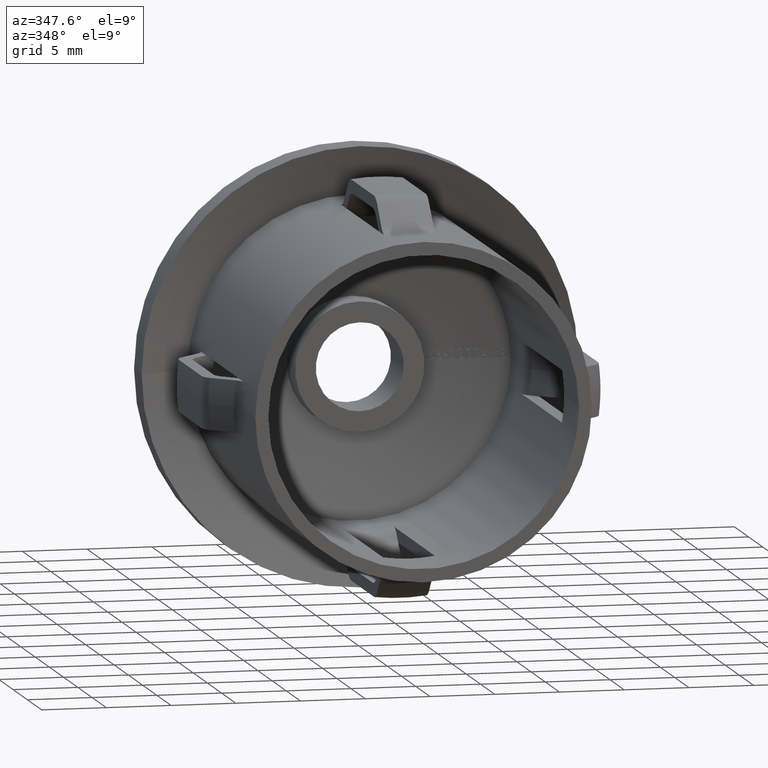
[diagram: clean part render]
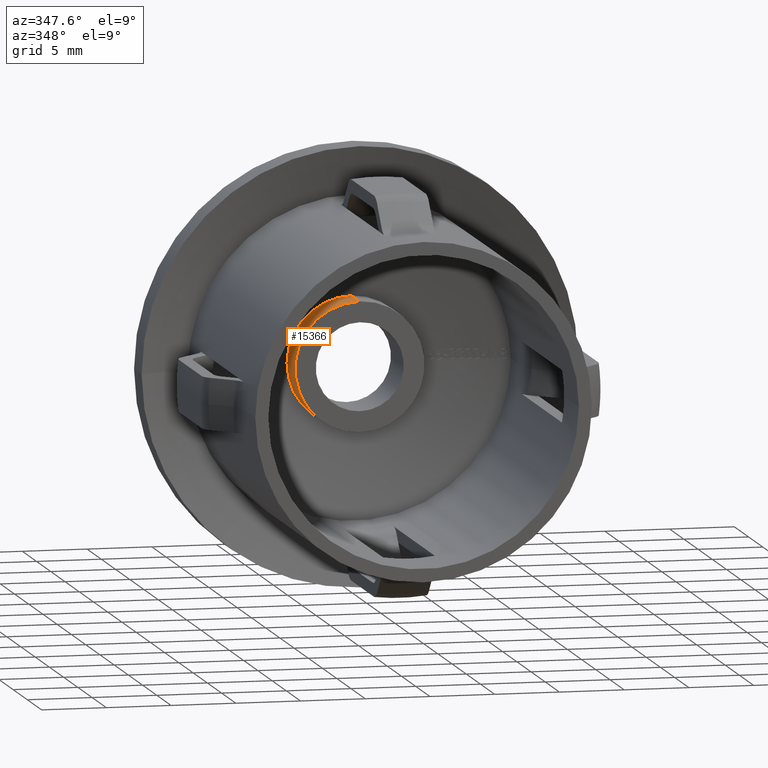
[diagram: same view with one face highlighted and labeled with its STEP entity id]
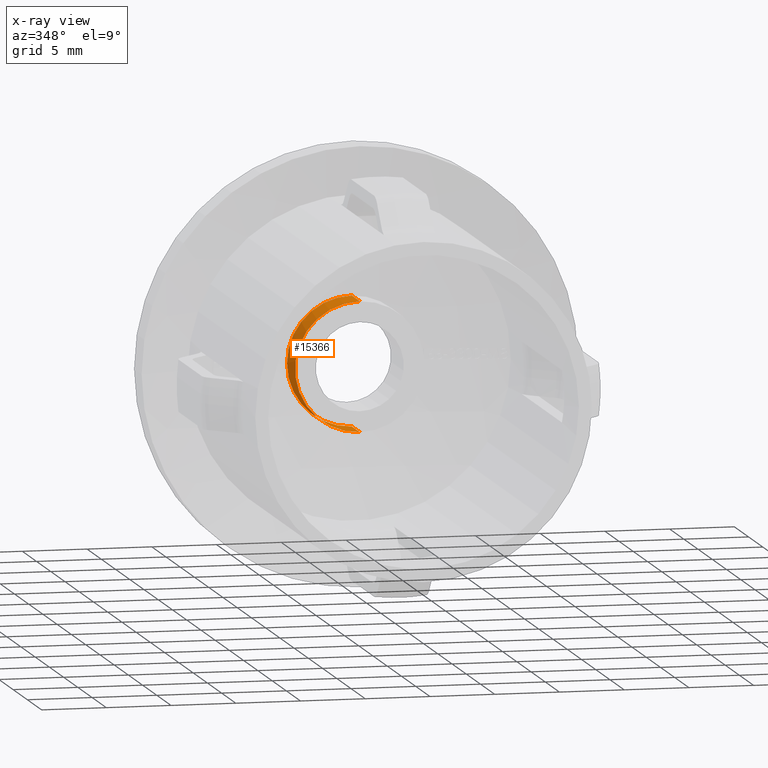
[diagram: x-ray of the same camera — body ghosted, the highlighted face saturated]
A machine part, auxiliary view. The second image highlights one B-rep face of the part: STEP entity #15366.
The next image is the same camera in x-ray: the body ghosted, the highlighted face saturated — about 0% of this face is hidden behind the body in this view.
In plain terms, the highlighted cylindrical surface (partial cylindrical patch) has radius 5 mm, axis along (0, -1, -0).
Its self-contained STEP definition (entity closure, byte-faithful):
#396 = EDGE_CURVE ( 'NONE', #10759, #2734, #4102, .T. ) ;
#983 = EDGE_CURVE ( 'NONE', #2734, #8760, #3211, .T. ) ;
#1072 = ORIENTED_EDGE ( 'NONE', *, *, #983, .T. ) ;
#1201 = EDGE_LOOP ( 'NONE', ( #5681, #4947, #9914, #1072, #6570 ) ) ;
#1549 = CARTESIAN_POINT ( 'NONE',  ( -4.626826423434419400E-014, 25.23610906923660800, 0.0000000000000000000 ) ) ;
#1574 = CARTESIAN_POINT ( 'NONE',  ( -4.565594083477053100E-014, 500000.0000000000600, 4.999999999999894300 ) ) ;
#2251 = CARTESIAN_POINT ( 'NONE',  ( -4.626826423434419400E-014, 22.41089393380867300, -4.999999999999894300 ) ) ;
#2734 = VERTEX_POINT ( 'NONE', #4257 ) ;
#2782 = DIRECTION ( 'NONE',  ( 0.0000000000000000000, 0.0000000000000000000, -1.000000000000000000 ) ) ;
#2904 = DIRECTION ( 'NONE',  ( -0.0000000000000000000, -1.000000000000000000, -0.0000000000000000000 ) ) ;
#3052 = AXIS2_PLACEMENT_3D ( 'NONE', #14755, #16174, #8050 ) ;
#3211 = LINE ( 'NONE', #8411, #5558 ) ;
#3543 = EDGE_CURVE ( 'NONE', #12796, #8760, #9421, .T. ) ;
#3804 = DIRECTION ( 'NONE',  ( 0.0000000000000000000, 0.0000000000000000000, -1.000000000000000000 ) ) ;
#3877 = LINE ( 'NONE', #1574, #4703 ) ;
#4102 = CIRCLE ( 'NONE', #8258, 4.999999999999894300 ) ;
#4257 = CARTESIAN_POINT ( 'NONE',  ( -4.626826423434419400E-014, 25.23610906923660800, -4.999999999999894300 ) ) ;
#4586 = CARTESIAN_POINT ( 'NONE',  ( -4.565594083477053100E-014, 25.23610906923660800, 4.999999999999894300 ) ) ;
#4703 = VECTOR ( 'NONE', #15286, 1000.000000000000000 ) ;
#4874 = AXIS2_PLACEMENT_3D ( 'NONE', #15933, #9198, #3804 ) ;
#4947 = ORIENTED_EDGE ( 'NONE', *, *, #5180, .T. ) ;
#5102 = AXIS2_PLACEMENT_3D ( 'NONE', #11120, #10884, #2782 ) ;
#5180 = EDGE_CURVE ( 'NONE', #5901, #10759, #17007, .T. ) ;
#5558 = VECTOR ( 'NONE', #9961, 1000.000000000000000 ) ;
#5681 = ORIENTED_EDGE ( 'NONE', *, *, #15044, .F. ) ;
#5901 = VERTEX_POINT ( 'NONE', #4586 ) ;
#6570 = ORIENTED_EDGE ( 'NONE', *, *, #3543, .F. ) ;
#7448 = FACE_OUTER_BOUND ( 'NONE', #1201, .T. ) ;
#8050 = DIRECTION ( 'NONE',  ( 0.0000000000000000000, 0.0000000000000000000, -1.000000000000000000 ) ) ;
#8258 = AXIS2_PLACEMENT_3D ( 'NONE', #1549, #2904, #12383 ) ;
#8411 = CARTESIAN_POINT ( 'NONE',  ( -4.626826423434419400E-014, 500000.0000000000600, -4.999999999999894300 ) ) ;
#8760 = VERTEX_POINT ( 'NONE', #2251 ) ;
#9198 = DIRECTION ( 'NONE',  ( -0.0000000000000000000, -1.000000000000000000, -0.0000000000000000000 ) ) ;
#9421 = CIRCLE ( 'NONE', #5102, 4.999999999999894300 ) ;
#9914 = ORIENTED_EDGE ( 'NONE', *, *, #396, .T. ) ;
#9961 = DIRECTION ( 'NONE',  ( 0.0000000000000000000, -1.000000000000000000, -0.0000000000000000000 ) ) ;
#10759 = VERTEX_POINT ( 'NONE', #13146 ) ;
#10884 = DIRECTION ( 'NONE',  ( 0.0000000000000000000, -1.000000000000000000, 0.0000000000000000000 ) ) ;
#11120 = CARTESIAN_POINT ( 'NONE',  ( -4.626826423434419400E-014, 22.41089393380867300, 0.0000000000000000000 ) ) ;
#12383 = DIRECTION ( 'NONE',  ( 0.0000000000000000000, 0.0000000000000000000, -1.000000000000000000 ) ) ;
#12796 = VERTEX_POINT ( 'NONE', #17164 ) ;
#13146 = CARTESIAN_POINT ( 'NONE',  ( -4.999999999999941400, 25.23610906923660800, 0.0000000000000000000 ) ) ;
#13622 = CYLINDRICAL_SURFACE ( 'NONE', #3052, 4.999999999999894300 ) ;
#14755 = CARTESIAN_POINT ( 'NONE',  ( -4.626826423434419400E-014, 500000.0000000000600, 0.0000000000000000000 ) ) ;
#15044 = EDGE_CURVE ( 'NONE', #5901, #12796, #3877, .T. ) ;
#15286 = DIRECTION ( 'NONE',  ( 0.0000000000000000000, -1.000000000000000000, -0.0000000000000000000 ) ) ;
#15366 = ADVANCED_FACE ( 'NONE', ( #7448 ), #13622, .T. ) ;
#15933 = CARTESIAN_POINT ( 'NONE',  ( -4.626826423434419400E-014, 25.23610906923660800, 0.0000000000000000000 ) ) ;
#16174 = DIRECTION ( 'NONE',  ( 0.0000000000000000000, -1.000000000000000000, -0.0000000000000000000 ) ) ;
#17007 = CIRCLE ( 'NONE', #4874, 4.999999999999894300 ) ;
#17164 = CARTESIAN_POINT ( 'NONE',  ( -4.565594083477053100E-014, 22.41089393380867300, 4.999999999999894300 ) ) ;